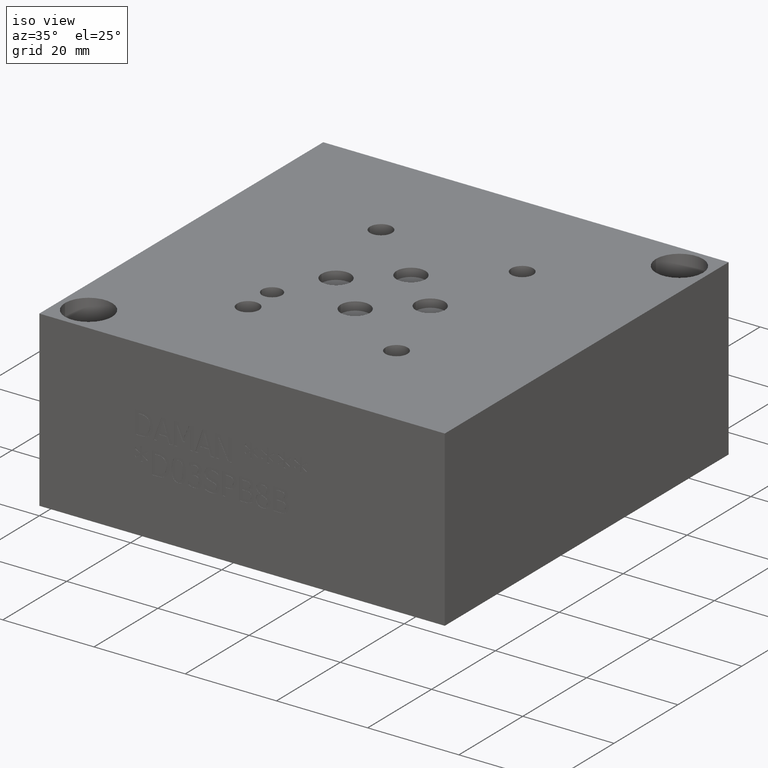
[diagram: clean part render]
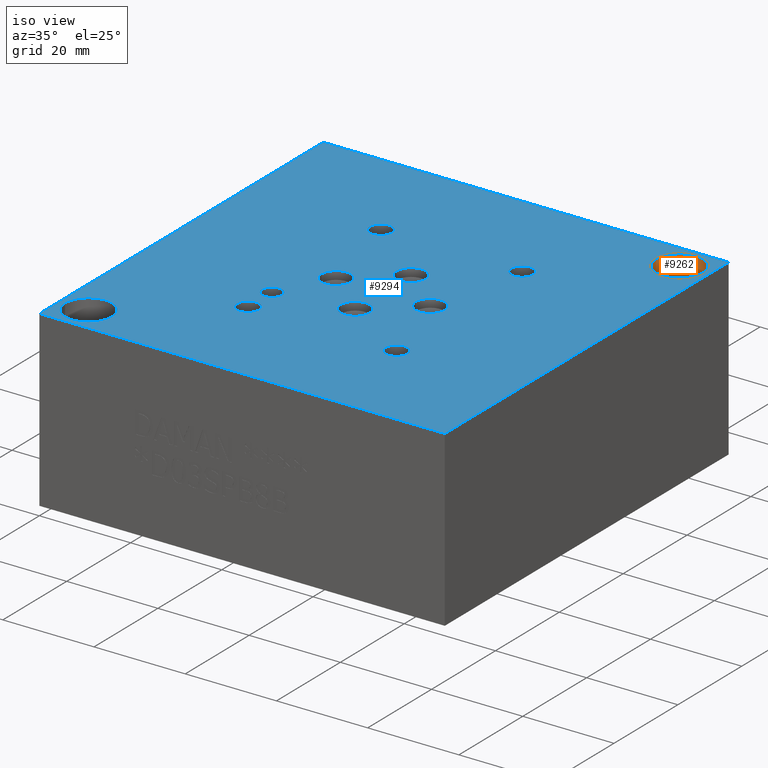
[diagram: same view with the hole feature highlighted: cylindrical wall and planar end face, labeled with their STEP entity ids]
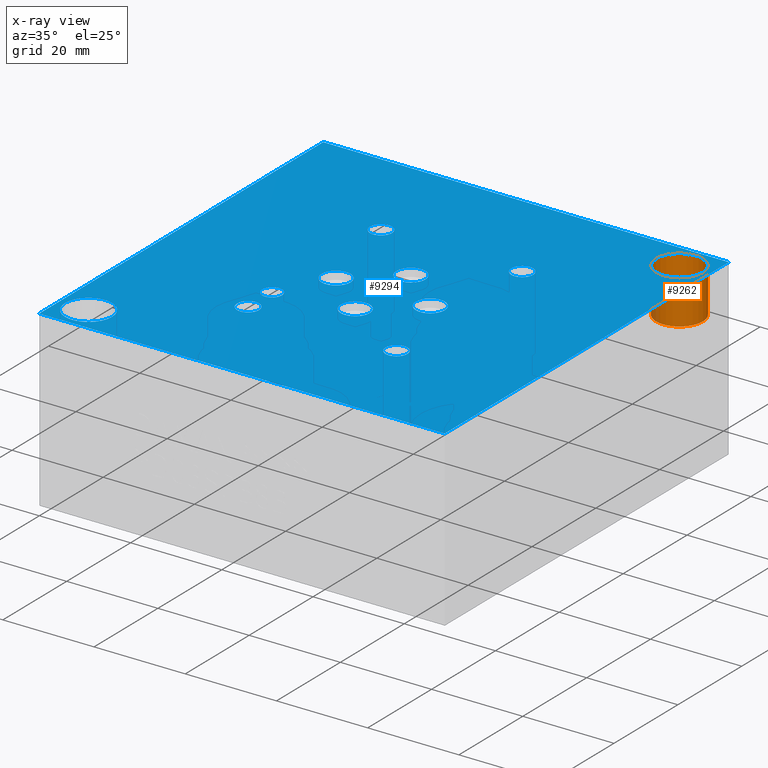
[diagram: x-ray of the same camera — body ghosted, the hole faces saturated]
A machine part, iso view. The highlighted faces form one hole feature of diameter 10.3124 mm: the cylindrical wall (entity #9262, orange) and its adjacent planar end face (entity #9294, blue) — they share a circular edge in the B-rep.
The next image is the same camera in x-ray (body ghosted, the hole faces saturated) — the bore reads through the body.
Wall:
#49=CYLINDRICAL_SURFACE('',#9680,5.1562);
#200=CIRCLE('',#9677,5.1562);
#201=CIRCLE('',#9678,5.1562);
#203=CIRCLE('',#9681,5.1562);
#204=CIRCLE('',#9682,5.1562);
#1112=FACE_OUTER_BOUND('',#1638,.T.);
#1638=EDGE_LOOP('',(#7976,#7977,#7978,#7979,#7980,#7981));
#2536=LINE('',#15828,#3414);
#3414=VECTOR('',#11361,5.1562);
#4251=VERTEX_POINT('',#15817);
#4252=VERTEX_POINT('',#15818);
#4254=VERTEX_POINT('',#15824);
#4255=VERTEX_POINT('',#15825);
#5512=EDGE_CURVE('',#4251,#4252,#200,.T.);
#5513=EDGE_CURVE('',#4252,#4251,#201,.T.);
#5515=EDGE_CURVE('',#4254,#4255,#203,.T.);
#5516=EDGE_CURVE('',#4255,#4254,#204,.T.);
#5517=EDGE_CURVE('',#4255,#4252,#2536,.T.);
#7976=ORIENTED_EDGE('',*,*,#5515,.F.);
#7977=ORIENTED_EDGE('',*,*,#5516,.F.);
#7978=ORIENTED_EDGE('',*,*,#5517,.T.);
#7979=ORIENTED_EDGE('',*,*,#5512,.F.);
#7980=ORIENTED_EDGE('',*,*,#5513,.F.);
#7981=ORIENTED_EDGE('',*,*,#5517,.F.);
#9262=ADVANCED_FACE('',(#1112),#49,.F.);
#9677=AXIS2_PLACEMENT_3D('',#15819,#11349,#11350);
#9678=AXIS2_PLACEMENT_3D('',#15820,#11351,#11352);
#9680=AXIS2_PLACEMENT_3D('',#15823,#11355,#11356);
#9681=AXIS2_PLACEMENT_3D('',#15826,#11357,#11358);
#9682=AXIS2_PLACEMENT_3D('',#15827,#11359,#11360);
#11349=DIRECTION('center_axis',(0.,0.,1.));
#11350=DIRECTION('ref_axis',(1.,0.,0.));
#11351=DIRECTION('center_axis',(0.,0.,1.));
#11352=DIRECTION('ref_axis',(1.,0.,0.));
#11355=DIRECTION('center_axis',(0.,0.,1.));
#11356=DIRECTION('ref_axis',(1.,0.,0.));
#11357=DIRECTION('center_axis',(0.,0.,-1.));
#11358=DIRECTION('ref_axis',(1.,0.,0.));
#11359=DIRECTION('center_axis',(0.,0.,-1.));
#11360=DIRECTION('ref_axis',(1.,0.,0.));
#11361=DIRECTION('',(0.,0.,-1.));
#15817=CARTESIAN_POINT('',(87.7062,82.55,28.448));
#15818=CARTESIAN_POINT('',(77.3938,82.55,28.448));
#15819=CARTESIAN_POINT('Origin',(82.55,82.55,28.448));
#15820=CARTESIAN_POINT('Origin',(82.55,82.55,28.448));
#15823=CARTESIAN_POINT('Origin',(82.55,82.55,33.274));
#15824=CARTESIAN_POINT('',(87.7062,82.55,38.1));
#15825=CARTESIAN_POINT('',(77.3938,82.55,38.1));
#15826=CARTESIAN_POINT('Origin',(82.55,82.55,38.1));
#15827=CARTESIAN_POINT('Origin',(82.55,82.55,38.1));
#15828=CARTESIAN_POINT('',(77.3938,82.55,33.274));
End face:
#121=FACE_BOUND('',#1675,.T.);
#122=FACE_BOUND('',#1676,.T.);
#123=FACE_BOUND('',#1677,.T.);
#124=FACE_BOUND('',#1678,.T.);
#125=FACE_BOUND('',#1679,.T.);
#126=FACE_BOUND('',#1680,.T.);
#127=FACE_BOUND('',#1681,.T.);
#128=FACE_BOUND('',#1682,.T.);
#129=FACE_BOUND('',#1683,.T.);
#130=FACE_BOUND('',#1684,.T.);
#131=FACE_BOUND('',#1685,.T.);
#198=CIRCLE('',#9673,5.1562);
#199=CIRCLE('',#9674,5.1562);
#203=CIRCLE('',#9681,5.1562);
#204=CIRCLE('',#9682,5.1562);
#207=CIRCLE('',#9688,3.175);
#208=CIRCLE('',#9689,3.175);
#211=CIRCLE('',#9694,3.175);
#212=CIRCLE('',#9695,3.175);
#215=CIRCLE('',#9700,3.175);
#216=CIRCLE('',#9701,3.175);
#219=CIRCLE('',#9706,3.175);
#220=CIRCLE('',#9707,3.175);
#223=CIRCLE('',#9712,2.1844);
#224=CIRCLE('',#9713,2.1844);
#230=CIRCLE('',#9722,2.413);
#231=CIRCLE('',#9723,2.413);
#237=CIRCLE('',#9733,2.413);
#238=CIRCLE('',#9734,2.413);
#244=CIRCLE('',#9744,2.413);
#245=CIRCLE('',#9745,2.413);
#251=CIRCLE('',#9755,2.413);
#252=CIRCLE('',#9756,2.413);
#1144=FACE_OUTER_BOUND('',#1674,.T.);
#1674=EDGE_LOOP('',(#8123,#8124,#8125,#8126));
#1675=EDGE_LOOP('',(#8127,#8128));
#1676=EDGE_LOOP('',(#8129,#8130));
#1677=EDGE_LOOP('',(#8131,#8132));
#1678=EDGE_LOOP('',(#8133,#8134));
#1679=EDGE_LOOP('',(#8135,#8136));
#1680=EDGE_LOOP('',(#8137,#8138));
#1681=EDGE_LOOP('',(#8139,#8140));
#1682=EDGE_LOOP('',(#8141,#8142));
#1683=EDGE_LOOP('',(#8143,#8144));
#1684=EDGE_LOOP('',(#8145,#8146));
#1685=EDGE_LOOP('',(#8147,#8148));
#2131=LINE('',#14725,#3009);
#2560=LINE('',#15986,#3438);
#2562=LINE('',#15990,#3440);
#2564=LINE('',#15993,#3442);
#3009=VECTOR('',#10472,10.);
#3438=VECTOR('',#11537,10.);
#3440=VECTOR('',#11541,10.);
#3442=VECTOR('',#11545,10.);
#3926=VERTEX_POINT('',#14722);
#3927=VERTEX_POINT('',#14724);
#4249=VERTEX_POINT('',#15809);
#4250=VERTEX_POINT('',#15810);
#4254=VERTEX_POINT('',#15824);
#4255=VERTEX_POINT('',#15825);
#4259=VERTEX_POINT('',#15839);
#4260=VERTEX_POINT('',#15840);
#4264=VERTEX_POINT('',#15852);
#4265=VERTEX_POINT('',#15853);
#4269=VERTEX_POINT('',#15865);
#4270=VERTEX_POINT('',#15866);
#4274=VERTEX_POINT('',#15878);
#4275=VERTEX_POINT('',#15879);
#4279=VERTEX_POINT('',#15891);
#4280=VERTEX_POINT('',#15892);
#4287=VERTEX_POINT('',#15911);
#4288=VERTEX_POINT('',#15912);
#4295=VERTEX_POINT('',#15933);
#4296=VERTEX_POINT('',#15934);
#4303=VERTEX_POINT('',#15955);
#4304=VERTEX_POINT('',#15956);
#4311=VERTEX_POINT('',#15977);
#4312=VERTEX_POINT('',#15978);
#4313=VERTEX_POINT('',#15985);
#4314=VERTEX_POINT('',#15989);
#5034=EDGE_CURVE('',#3927,#3926,#2131,.T.);
#5508=EDGE_CURVE('',#4249,#4250,#198,.T.);
#5509=EDGE_CURVE('',#4250,#4249,#199,.T.);
#5515=EDGE_CURVE('',#4254,#4255,#203,.T.);
#5516=EDGE_CURVE('',#4255,#4254,#204,.T.);
#5522=EDGE_CURVE('',#4259,#4260,#207,.T.);
#5523=EDGE_CURVE('',#4260,#4259,#208,.T.);
#5528=EDGE_CURVE('',#4264,#4265,#211,.T.);
#5529=EDGE_CURVE('',#4265,#4264,#212,.T.);
#5534=EDGE_CURVE('',#4269,#4270,#215,.T.);
#5535=EDGE_CURVE('',#4270,#4269,#216,.T.);
#5540=EDGE_CURVE('',#4274,#4275,#219,.T.);
#5541=EDGE_CURVE('',#4275,#4274,#220,.T.);
#5546=EDGE_CURVE('',#4279,#4280,#223,.T.);
#5547=EDGE_CURVE('',#4280,#4279,#224,.T.);
#5555=EDGE_CURVE('',#4287,#4288,#230,.T.);
#5556=EDGE_CURVE('',#4288,#4287,#231,.T.);
#5565=EDGE_CURVE('',#4295,#4296,#237,.T.);
#5566=EDGE_CURVE('',#4296,#4295,#238,.T.);
#5575=EDGE_CURVE('',#4303,#4304,#244,.T.);
#5576=EDGE_CURVE('',#4304,#4303,#245,.T.);
#5585=EDGE_CURVE('',#4311,#4312,#251,.T.);
#5586=EDGE_CURVE('',#4312,#4311,#252,.T.);
#5589=EDGE_CURVE('',#4313,#3927,#2560,.T.);
#5591=EDGE_CURVE('',#4314,#4313,#2562,.T.);
#5593=EDGE_CURVE('',#3926,#4314,#2564,.T.);
#8123=ORIENTED_EDGE('',*,*,#5034,.T.);
#8124=ORIENTED_EDGE('',*,*,#5593,.T.);
#8125=ORIENTED_EDGE('',*,*,#5591,.T.);
#8126=ORIENTED_EDGE('',*,*,#5589,.T.);
#8127=ORIENTED_EDGE('',*,*,#5508,.T.);
#8128=ORIENTED_EDGE('',*,*,#5509,.T.);
#8129=ORIENTED_EDGE('',*,*,#5515,.T.);
#8130=ORIENTED_EDGE('',*,*,#5516,.T.);
#8131=ORIENTED_EDGE('',*,*,#5522,.T.);
#8132=ORIENTED_EDGE('',*,*,#5523,.T.);
#8133=ORIENTED_EDGE('',*,*,#5528,.T.);
#8134=ORIENTED_EDGE('',*,*,#5529,.T.);
#8135=ORIENTED_EDGE('',*,*,#5534,.T.);
#8136=ORIENTED_EDGE('',*,*,#5535,.T.);
#8137=ORIENTED_EDGE('',*,*,#5540,.T.);
#8138=ORIENTED_EDGE('',*,*,#5541,.T.);
#8139=ORIENTED_EDGE('',*,*,#5546,.T.);
#8140=ORIENTED_EDGE('',*,*,#5547,.T.);
#8141=ORIENTED_EDGE('',*,*,#5555,.T.);
#8142=ORIENTED_EDGE('',*,*,#5556,.T.);
#8143=ORIENTED_EDGE('',*,*,#5565,.T.);
#8144=ORIENTED_EDGE('',*,*,#5566,.T.);
#8145=ORIENTED_EDGE('',*,*,#5575,.T.);
#8146=ORIENTED_EDGE('',*,*,#5576,.T.);
#8147=ORIENTED_EDGE('',*,*,#5585,.T.);
#8148=ORIENTED_EDGE('',*,*,#5586,.T.);
#8433=PLANE('',#9762);
#9294=ADVANCED_FACE('',(#1144,#121,#122,#123,#124,#125,#126,#127,#128,#129,
#130,#131),#8433,.T.);
#9673=AXIS2_PLACEMENT_3D('',#15811,#11339,#11340);
#9674=AXIS2_PLACEMENT_3D('',#15812,#11341,#11342);
#9681=AXIS2_PLACEMENT_3D('',#15826,#11357,#11358);
#9682=AXIS2_PLACEMENT_3D('',#15827,#11359,#11360);
#9688=AXIS2_PLACEMENT_3D('',#15841,#11374,#11375);
#9689=AXIS2_PLACEMENT_3D('',#15842,#11376,#11377);
#9694=AXIS2_PLACEMENT_3D('',#15854,#11388,#11389);
#9695=AXIS2_PLACEMENT_3D('',#15855,#11390,#11391);
#9700=AXIS2_PLACEMENT_3D('',#15867,#11402,#11403);
#9701=AXIS2_PLACEMENT_3D('',#15868,#11404,#11405);
#9706=AXIS2_PLACEMENT_3D('',#15880,#11416,#11417);
#9707=AXIS2_PLACEMENT_3D('',#15881,#11418,#11419);
#9712=AXIS2_PLACEMENT_3D('',#15893,#11430,#11431);
#9713=AXIS2_PLACEMENT_3D('',#15894,#11432,#11433);
#9722=AXIS2_PLACEMENT_3D('',#15913,#11452,#11453);
#9723=AXIS2_PLACEMENT_3D('',#15914,#11454,#11455);
#9733=AXIS2_PLACEMENT_3D('',#15935,#11477,#11478);
#9734=AXIS2_PLACEMENT_3D('',#15936,#11479,#11480);
#9744=AXIS2_PLACEMENT_3D('',#15957,#11502,#11503);
#9745=AXIS2_PLACEMENT_3D('',#15958,#11504,#11505);
#9755=AXIS2_PLACEMENT_3D('',#15979,#11527,#11528);
#9756=AXIS2_PLACEMENT_3D('',#15980,#11529,#11530);
#9762=AXIS2_PLACEMENT_3D('',#15995,#11548,#11549);
#10472=DIRECTION('',(1.,0.,0.));
#11339=DIRECTION('center_axis',(0.,0.,-1.));
#11340=DIRECTION('ref_axis',(1.,0.,0.));
#11341=DIRECTION('center_axis',(0.,0.,-1.));
#11342=DIRECTION('ref_axis',(1.,0.,0.));
#11357=DIRECTION('center_axis',(0.,0.,-1.));
#11358=DIRECTION('ref_axis',(1.,0.,0.));
#11359=DIRECTION('center_axis',(0.,0.,-1.));
#11360=DIRECTION('ref_axis',(1.,0.,0.));
#11374=DIRECTION('center_axis',(0.,0.,-1.));
#11375=DIRECTION('ref_axis',(1.,0.,0.));
#11376=DIRECTION('center_axis',(0.,0.,-1.));
#11377=DIRECTION('ref_axis',(1.,0.,0.));
#11388=DIRECTION('center_axis',(0.,0.,-1.));
#11389=DIRECTION('ref_axis',(1.,0.,0.));
#11390=DIRECTION('center_axis',(0.,0.,-1.));
#11391=DIRECTION('ref_axis',(1.,0.,0.));
#11402=DIRECTION('center_axis',(0.,0.,-1.));
#11403=DIRECTION('ref_axis',(1.,0.,0.));
#11404=DIRECTION('center_axis',(0.,0.,-1.));
#11405=DIRECTION('ref_axis',(1.,0.,0.));
#11416=DIRECTION('center_axis',(0.,0.,-1.));
#11417=DIRECTION('ref_axis',(1.,0.,0.));
#11418=DIRECTION('center_axis',(0.,0.,-1.));
#11419=DIRECTION('ref_axis',(1.,0.,0.));
#11430=DIRECTION('center_axis',(0.,0.,-1.));
#11431=DIRECTION('ref_axis',(1.,0.,0.));
#11432=DIRECTION('center_axis',(0.,0.,-1.));
#11433=DIRECTION('ref_axis',(1.,0.,0.));
#11452=DIRECTION('center_axis',(0.,0.,-1.));
#11453=DIRECTION('ref_axis',(1.,0.,0.));
#11454=DIRECTION('center_axis',(0.,0.,-1.));
#11455=DIRECTION('ref_axis',(1.,0.,0.));
#11477=DIRECTION('center_axis',(0.,0.,-1.));
#11478=DIRECTION('ref_axis',(1.,0.,0.));
#11479=DIRECTION('center_axis',(0.,0.,-1.));
#11480=DIRECTION('ref_axis',(1.,0.,0.));
#11502=DIRECTION('center_axis',(0.,0.,-1.));
#11503=DIRECTION('ref_axis',(1.,0.,0.));
#11504=DIRECTION('center_axis',(0.,0.,-1.));
#11505=DIRECTION('ref_axis',(1.,0.,0.));
#11527=DIRECTION('center_axis',(0.,0.,-1.));
#11528=DIRECTION('ref_axis',(1.,0.,0.));
#11529=DIRECTION('center_axis',(0.,0.,-1.));
#11530=DIRECTION('ref_axis',(1.,0.,0.));
#11537=DIRECTION('',(0.,-1.,0.));
#11541=DIRECTION('',(-1.,0.,0.));
#11545=DIRECTION('',(0.,1.,0.));
#11548=DIRECTION('center_axis',(0.,0.,1.));
#11549=DIRECTION('ref_axis',(1.,0.,0.));
#14722=CARTESIAN_POINT('',(88.9,0.,38.1));
#14724=CARTESIAN_POINT('',(0.,0.,38.1));
#14725=CARTESIAN_POINT('',(0.,0.,38.1));
#15809=CARTESIAN_POINT('',(11.5062,6.35,38.1));
#15810=CARTESIAN_POINT('',(1.1938,6.35,38.1));
#15811=CARTESIAN_POINT('Origin',(6.35,6.35,38.1));
#15812=CARTESIAN_POINT('Origin',(6.35,6.35,38.1));
#15824=CARTESIAN_POINT('',(87.7062,82.55,38.1));
#15825=CARTESIAN_POINT('',(77.3938,82.55,38.1));
#15826=CARTESIAN_POINT('Origin',(82.55,82.55,38.1));
#15827=CARTESIAN_POINT('Origin',(82.55,82.55,38.1));
#15839=CARTESIAN_POINT('',(48.4886,51.6636,38.1));
#15840=CARTESIAN_POINT('',(42.1386,51.6636,38.1));
#15841=CARTESIAN_POINT('Origin',(45.3136,51.6636,38.1));
#15842=CARTESIAN_POINT('Origin',(45.3136,51.6636,38.1));
#15852=CARTESIAN_POINT('',(38.1762,42.926,38.1));
#15853=CARTESIAN_POINT('',(31.8262,42.926,38.1));
#15854=CARTESIAN_POINT('Origin',(35.0012,42.926,38.1));
#15855=CARTESIAN_POINT('Origin',(35.0012,42.926,38.1));
#15865=CARTESIAN_POINT('',(58.8264,42.926,38.1));
#15866=CARTESIAN_POINT('',(52.4764,42.926,38.1));
#15867=CARTESIAN_POINT('Origin',(55.6514,42.926,38.1));
#15868=CARTESIAN_POINT('Origin',(55.6514,42.926,38.1));
#15878=CARTESIAN_POINT('',(48.4886,34.1884,38.1));
#15879=CARTESIAN_POINT('',(42.1386,34.1884,38.1));
#15880=CARTESIAN_POINT('Origin',(45.3136,34.1884,38.1));
#15881=CARTESIAN_POINT('Origin',(45.3136,34.1884,38.1));
#15891=CARTESIAN_POINT('',(31.242,31.369,38.1));
#15892=CARTESIAN_POINT('',(26.8732,31.369,38.1));
#15893=CARTESIAN_POINT('Origin',(29.0576,31.369,38.1));
#15894=CARTESIAN_POINT('Origin',(29.0576,31.369,38.1));
#15911=CARTESIAN_POINT('',(64.008,23.876,38.1));
#15912=CARTESIAN_POINT('',(59.182,23.876,38.1));
#15913=CARTESIAN_POINT('Origin',(61.595,23.876,38.1));
#15914=CARTESIAN_POINT('Origin',(61.595,23.876,38.1));
#15933=CARTESIAN_POINT('',(32.258,64.3636,38.1));
#15934=CARTESIAN_POINT('',(27.432,64.3636,38.1));
#15935=CARTESIAN_POINT('Origin',(29.845,64.3636,38.1));
#15936=CARTESIAN_POINT('Origin',(29.845,64.3636,38.1));
#15955=CARTESIAN_POINT('',(63.2206,64.3636,38.1));
#15956=CARTESIAN_POINT('',(58.3946,64.3636,38.1));
#15957=CARTESIAN_POINT('Origin',(60.8076,64.3636,38.1));
#15958=CARTESIAN_POINT('Origin',(60.8076,64.3636,38.1));
#15977=CARTESIAN_POINT('',(31.4706,23.876,38.1));
#15978=CARTESIAN_POINT('',(26.6446,23.876,38.1));
#15979=CARTESIAN_POINT('Origin',(29.0576,23.876,38.1));
#15980=CARTESIAN_POINT('Origin',(29.0576,23.876,38.1));
#15985=CARTESIAN_POINT('',(0.,88.9,38.1));
#15986=CARTESIAN_POINT('',(0.,88.9,38.1));
#15989=CARTESIAN_POINT('',(88.9,88.9,38.1));
#15990=CARTESIAN_POINT('',(88.9,88.9,38.1));
#15993=CARTESIAN_POINT('',(88.9,0.,38.1));
#15995=CARTESIAN_POINT('Origin',(44.45,44.45,38.1));